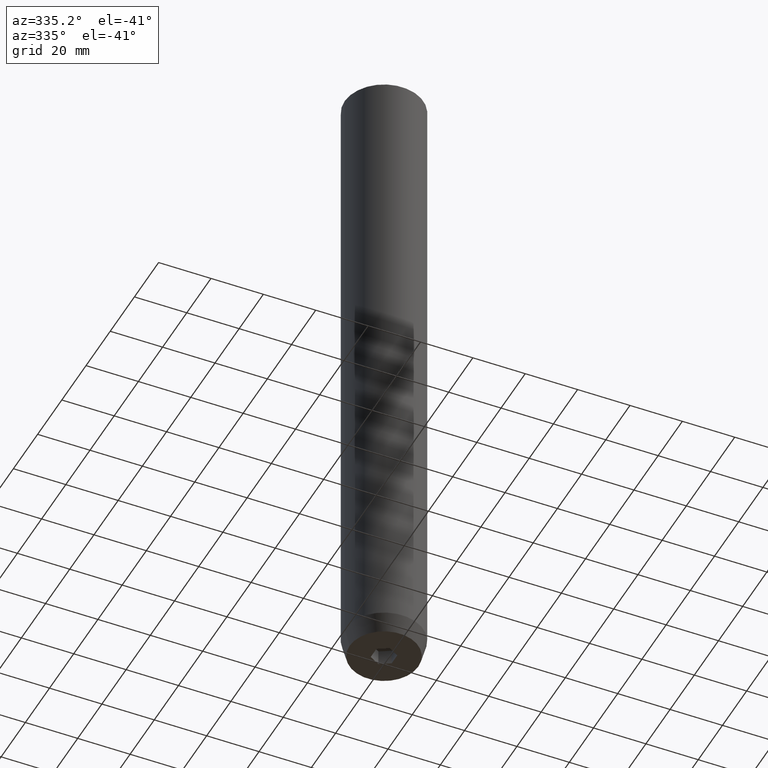
[diagram: clean part render]
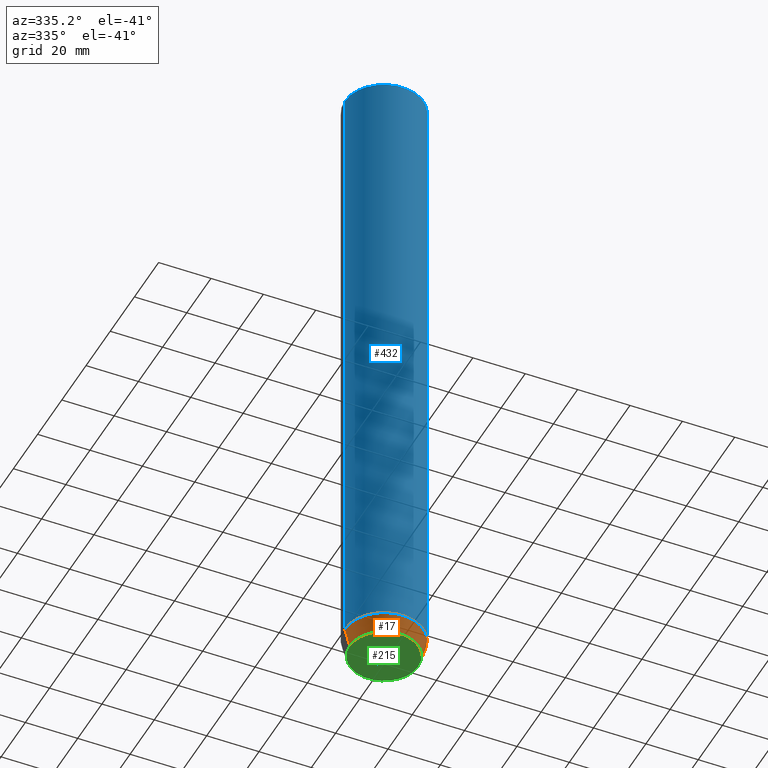
[diagram: same view with three faces highlighted in distinct colors, each labeled with its STEP entity id]
A machine part, auxiliary view with three faces highlighted in distinct colors.
Their STEP definitions:

[orange] entity #17 — the highlighted conical surface has half-angle 15 deg.
#2 = ORIENTED_EDGE ( 'NONE', *, *, #561, .T. ) ;
#17 = ADVANCED_FACE ( 'NONE', ( #604 ), #427, .T. ) ;
#20 = DIRECTION ( 'NONE',  ( -0.000000000000000000, -0.000000000000000000, 1.000000000000000000 ) ) ;
#37 = CARTESIAN_POINT ( 'NONE',  ( 0.000000000000000000, 0.000000000000000000, -243.0000000000000000 ) ) ;
#59 = CIRCLE ( 'NONE', #587, 15.00000000000000000 ) ;
#63 = CARTESIAN_POINT ( 'NONE',  ( 15.00000000000000000, 0.000000000000000000, -243.0000000000000000 ) ) ;
#96 = VECTOR ( 'NONE', #399, 1000.000000000000000 ) ;
#127 = DIRECTION ( 'NONE',  ( 1.000000000000000000, 0.000000000000000000, 0.000000000000000000 ) ) ;
#144 = DIRECTION ( 'NONE',  ( -0.2588190451025222383, 3.169619151431782814E-17, 0.9659258262890678681 ) ) ;
#186 = CARTESIAN_POINT ( 'NONE',  ( 0.000000000000000000, 0.000000000000000000, -250.0000000000000000 ) ) ;
#196 = ORIENTED_EDGE ( 'NONE', *, *, #507, .F. ) ;
#197 = CARTESIAN_POINT ( 'NONE',  ( 13.12435565298212659, 0.000000000000000000, -250.0000000000000000 ) ) ;
#208 = EDGE_LOOP ( 'NONE', ( #196, #2, #615, #297 ) ) ;
#213 = CARTESIAN_POINT ( 'NONE',  ( 15.00000000000000000, 0.000000000000000000, -243.0000000000000000 ) ) ;
#226 = VERTEX_POINT ( 'NONE', #63 ) ;
#228 = AXIS2_PLACEMENT_3D ( 'NONE', #186, #284, #533 ) ;
#280 = EDGE_CURVE ( 'NONE', #584, #226, #303, .T. ) ;
#284 = DIRECTION ( 'NONE',  ( -0.000000000000000000, -0.000000000000000000, 1.000000000000000000 ) ) ;
#289 = DIRECTION ( 'NONE',  ( -0.000000000000000000, -0.000000000000000000, 1.000000000000000000 ) ) ;
#297 = ORIENTED_EDGE ( 'NONE', *, *, #624, .F. ) ;
#303 = LINE ( 'NONE', #213, #96 ) ;
#347 = DIRECTION ( 'NONE',  ( 1.000000000000000000, 0.000000000000000000, 0.000000000000000000 ) ) ;
#381 = VERTEX_POINT ( 'NONE', #623 ) ;
#399 = DIRECTION ( 'NONE',  ( 0.2588190451025222383, 0.000000000000000000, 0.9659258262890678681 ) ) ;
#408 = CARTESIAN_POINT ( 'NONE',  ( 0.000000000000000000, 0.000000000000000000, -243.0000000000000000 ) ) ;
#427 = CONICAL_SURFACE ( 'NONE', #518, 15.00000000000000000, 0.2617993877991509621 ) ;
#431 = LINE ( 'NONE', #488, #456 ) ;
#456 = VECTOR ( 'NONE', #144, 1000.000000000000000 ) ;
#488 = CARTESIAN_POINT ( 'NONE',  ( -15.00000000000000000, 1.836970198721029589E-15, -243.0000000000000000 ) ) ;
#507 = EDGE_CURVE ( 'NONE', #577, #381, #431, .T. ) ;
#518 = AXIS2_PLACEMENT_3D ( 'NONE', #408, #20, #347 ) ;
#533 = DIRECTION ( 'NONE',  ( 1.000000000000000000, 0.000000000000000000, 0.000000000000000000 ) ) ;
#537 = CARTESIAN_POINT ( 'NONE',  ( -13.12435565298212659, 1.722120106425316494E-15, -250.0000000000000000 ) ) ;
#548 = CIRCLE ( 'NONE', #228, 13.12435565298212659 ) ;
#561 = EDGE_CURVE ( 'NONE', #577, #584, #548, .T. ) ;
#577 = VERTEX_POINT ( 'NONE', #537 ) ;
#584 = VERTEX_POINT ( 'NONE', #197 ) ;
#587 = AXIS2_PLACEMENT_3D ( 'NONE', #37, #289, #127 ) ;
#604 = FACE_OUTER_BOUND ( 'NONE', #208, .T. ) ;
#615 = ORIENTED_EDGE ( 'NONE', *, *, #280, .T. ) ;
#623 = CARTESIAN_POINT ( 'NONE',  ( -15.00000000000000000, 1.836970198721029589E-15, -243.0000000000000000 ) ) ;
#624 = EDGE_CURVE ( 'NONE', #381, #226, #59, .T. ) ;

[blue] entity #432 — the highlighted cylindrical surface (partial cylindrical patch) has radius 15 mm, axis along (-0, -0, 1).
#15 = EDGE_LOOP ( 'NONE', ( #122, #244, #242, #264 ) ) ;
#37 = CARTESIAN_POINT ( 'NONE',  ( 0.000000000000000000, 0.000000000000000000, -243.0000000000000000 ) ) ;
#59 = CIRCLE ( 'NONE', #587, 15.00000000000000000 ) ;
#63 = CARTESIAN_POINT ( 'NONE',  ( 15.00000000000000000, 0.000000000000000000, -243.0000000000000000 ) ) ;
#74 = FACE_OUTER_BOUND ( 'NONE', #15, .T. ) ;
#87 = VERTEX_POINT ( 'NONE', #188 ) ;
#118 = DIRECTION ( 'NONE',  ( 1.000000000000000000, 0.000000000000000000, 0.000000000000000000 ) ) ;
#121 = CARTESIAN_POINT ( 'NONE',  ( 15.00000000000000000, 0.000000000000000000, -0.5000000000000662803 ) ) ;
#122 = ORIENTED_EDGE ( 'NONE', *, *, #442, .F. ) ;
#127 = DIRECTION ( 'NONE',  ( 1.000000000000000000, 0.000000000000000000, 0.000000000000000000 ) ) ;
#133 = LINE ( 'NONE', #200, #553 ) ;
#169 = DIRECTION ( 'NONE',  ( -0.000000000000000000, -0.000000000000000000, 1.000000000000000000 ) ) ;
#188 = CARTESIAN_POINT ( 'NONE',  ( -15.00000000000000000, 1.836970198721029589E-15, -0.5000000000000662803 ) ) ;
#200 = CARTESIAN_POINT ( 'NONE',  ( 15.00000000000000000, 0.000000000000000000, 0.000000000000000000 ) ) ;
#219 = DIRECTION ( 'NONE',  ( 0.000000000000000000, 0.000000000000000000, -1.000000000000000000 ) ) ;
#226 = VERTEX_POINT ( 'NONE', #63 ) ;
#242 = ORIENTED_EDGE ( 'NONE', *, *, #639, .T. ) ;
#244 = ORIENTED_EDGE ( 'NONE', *, *, #624, .T. ) ;
#264 = ORIENTED_EDGE ( 'NONE', *, *, #368, .T. ) ;
#266 = LINE ( 'NONE', #468, #572 ) ;
#270 = CARTESIAN_POINT ( 'NONE',  ( 0.000000000000000000, 0.000000000000000000, 0.000000000000000000 ) ) ;
#289 = DIRECTION ( 'NONE',  ( -0.000000000000000000, -0.000000000000000000, 1.000000000000000000 ) ) ;
#298 = DIRECTION ( 'NONE',  ( -0.000000000000000000, -0.000000000000000000, 1.000000000000000000 ) ) ;
#321 = DIRECTION ( 'NONE',  ( 1.000000000000000000, 0.000000000000000000, 0.000000000000000000 ) ) ;
#368 = EDGE_CURVE ( 'NONE', #417, #87, #373, .T. ) ;
#373 = CIRCLE ( 'NONE', #490, 15.00000000000000000 ) ;
#381 = VERTEX_POINT ( 'NONE', #623 ) ;
#414 = DIRECTION ( 'NONE',  ( -0.000000000000000000, -0.000000000000000000, 1.000000000000000000 ) ) ;
#417 = VERTEX_POINT ( 'NONE', #121 ) ;
#432 = ADVANCED_FACE ( 'NONE', ( #74 ), #472, .T. ) ;
#442 = EDGE_CURVE ( 'NONE', #381, #87, #266, .T. ) ;
#468 = CARTESIAN_POINT ( 'NONE',  ( -15.00000000000000000, 1.836970198721029589E-15, 0.000000000000000000 ) ) ;
#472 = CYLINDRICAL_SURFACE ( 'NONE', #621, 15.00000000000000000 ) ;
#490 = AXIS2_PLACEMENT_3D ( 'NONE', #570, #219, #321 ) ;
#553 = VECTOR ( 'NONE', #298, 1000.000000000000000 ) ;
#570 = CARTESIAN_POINT ( 'NONE',  ( 0.000000000000000000, 0.000000000000000000, -0.5000000000000662803 ) ) ;
#572 = VECTOR ( 'NONE', #414, 1000.000000000000000 ) ;
#587 = AXIS2_PLACEMENT_3D ( 'NONE', #37, #289, #127 ) ;
#621 = AXIS2_PLACEMENT_3D ( 'NONE', #270, #169, #118 ) ;
#623 = CARTESIAN_POINT ( 'NONE',  ( -15.00000000000000000, 1.836970198721029589E-15, -243.0000000000000000 ) ) ;
#624 = EDGE_CURVE ( 'NONE', #381, #226, #59, .T. ) ;
#639 = EDGE_CURVE ( 'NONE', #226, #417, #133, .T. ) ;

[green] entity #215 — the highlighted planar face has unit normal (0, 0, -1).
#9 = PLANE ( 'NONE',  #10 ) ;
#10 = AXIS2_PLACEMENT_3D ( 'NONE', #255, #261, #447 ) ;
#36 = VERTEX_POINT ( 'NONE', #486 ) ;
#46 = DIRECTION ( 'NONE',  ( 0.000000000000000000, -1.000000000000000000, 0.000000000000000000 ) ) ;
#55 = CARTESIAN_POINT ( 'NONE',  ( -2.000000000000000000, 3.464101615137755275, -250.0000000000000000 ) ) ;
#70 = DIRECTION ( 'NONE',  ( -0.8660254037844385966, -0.4999999999999998890, 0.000000000000000000 ) ) ;
#91 = LINE ( 'NONE', #291, #315 ) ;
#101 = EDGE_LOOP ( 'NONE', ( #273, #430 ) ) ;
#112 = FACE_BOUND ( 'NONE', #201, .T. ) ;
#114 = DIRECTION ( 'NONE',  ( 1.000000000000000000, 0.000000000000000000, 0.000000000000000000 ) ) ;
#125 = AXIS2_PLACEMENT_3D ( 'NONE', #318, #365, #114 ) ;
#143 = EDGE_CURVE ( 'NONE', #519, #268, #573, .T. ) ;
#174 = CARTESIAN_POINT ( 'NONE',  ( -4.000000000000000888, 1.502314598737159623E-15, -250.0000000000000000 ) ) ;
#176 = DIRECTION ( 'NONE',  ( -0.8660254037844387076, 0.4999999999999997224, 0.000000000000000000 ) ) ;
#186 = CARTESIAN_POINT ( 'NONE',  ( 0.000000000000000000, 0.000000000000000000, -250.0000000000000000 ) ) ;
#197 = CARTESIAN_POINT ( 'NONE',  ( 13.12435565298212659, 0.000000000000000000, -250.0000000000000000 ) ) ;
#201 = EDGE_LOOP ( 'NONE', ( #419, #635, #409, #461, #334, #235 ) ) ;
#205 = VECTOR ( 'NONE', #70, 1000.000000000000227 ) ;
#215 = ADVANCED_FACE ( 'NONE', ( #112, #310 ), #9, .T. ) ;
#228 = AXIS2_PLACEMENT_3D ( 'NONE', #186, #284, #533 ) ;
#229 = LINE ( 'NONE', #467, #336 ) ;
#231 = CARTESIAN_POINT ( 'NONE',  ( 4.000000000000000000, -2.309401076758503368, -250.0000000000000000 ) ) ;
#235 = ORIENTED_EDGE ( 'NONE', *, *, #454, .F. ) ;
#246 = DIRECTION ( 'NONE',  ( 0.8660254037844387076, 0.4999999999999999445, 0.000000000000000000 ) ) ;
#253 = CARTESIAN_POINT ( 'NONE',  ( -4.000000000000001776, -2.309401076758503368, -250.0000000000000000 ) ) ;
#255 = CARTESIAN_POINT ( 'NONE',  ( 0.000000000000000000, 13.12435565298212659, -250.0000000000000000 ) ) ;
#261 = DIRECTION ( 'NONE',  ( 0.000000000000000000, 0.000000000000000000, -1.000000000000000000 ) ) ;
#268 = VERTEX_POINT ( 'NONE', #253 ) ;
#273 = ORIENTED_EDGE ( 'NONE', *, *, #412, .F. ) ;
#275 = CARTESIAN_POINT ( 'NONE',  ( 1.999999999999999556, -3.464101615137754386, -250.0000000000000000 ) ) ;
#284 = DIRECTION ( 'NONE',  ( -0.000000000000000000, -0.000000000000000000, 1.000000000000000000 ) ) ;
#285 = CARTESIAN_POINT ( 'NONE',  ( 4.000000000000000000, 2.309401076758504257, -250.0000000000000000 ) ) ;
#291 = CARTESIAN_POINT ( 'NONE',  ( 4.000000000000000000, 0.000000000000000000, -250.0000000000000000 ) ) ;
#310 = FACE_OUTER_BOUND ( 'NONE', #101, .T. ) ;
#315 = VECTOR ( 'NONE', #46, 1000.000000000000000 ) ;
#318 = CARTESIAN_POINT ( 'NONE',  ( 0.000000000000000000, 0.000000000000000000, -250.0000000000000000 ) ) ;
#323 = CARTESIAN_POINT ( 'NONE',  ( -1.999999999999999112, -3.464101615137755275, -250.0000000000000000 ) ) ;
#325 = VERTEX_POINT ( 'NONE', #616 ) ;
#329 = EDGE_CURVE ( 'NONE', #325, #36, #496, .T. ) ;
#334 = ORIENTED_EDGE ( 'NONE', *, *, #576, .F. ) ;
#336 = VECTOR ( 'NONE', #620, 999.9999999999998863 ) ;
#364 = LINE ( 'NONE', #275, #205 ) ;
#365 = DIRECTION ( 'NONE',  ( -0.000000000000000000, -0.000000000000000000, 1.000000000000000000 ) ) ;
#387 = VECTOR ( 'NONE', #579, 1000.000000000000000 ) ;
#407 = CIRCLE ( 'NONE', #125, 13.12435565298212659 ) ;
#409 = ORIENTED_EDGE ( 'NONE', *, *, #143, .F. ) ;
#412 = EDGE_CURVE ( 'NONE', #584, #577, #407, .T. ) ;
#419 = ORIENTED_EDGE ( 'NONE', *, *, #329, .F. ) ;
#420 = EDGE_CURVE ( 'NONE', #590, #519, #364, .T. ) ;
#421 = LINE ( 'NONE', #174, #387 ) ;
#430 = ORIENTED_EDGE ( 'NONE', *, *, #561, .F. ) ;
#447 = DIRECTION ( 'NONE',  ( -1.000000000000000000, 0.000000000000000000, -0.000000000000000000 ) ) ;
#454 = EDGE_CURVE ( 'NONE', #36, #535, #229, .T. ) ;
#461 = ORIENTED_EDGE ( 'NONE', *, *, #420, .F. ) ;
#467 = CARTESIAN_POINT ( 'NONE',  ( 2.000000000000000000, 3.464101615137755275, -250.0000000000000000 ) ) ;
#469 = EDGE_CURVE ( 'NONE', #268, #325, #421, .T. ) ;
#486 = CARTESIAN_POINT ( 'NONE',  ( 8.673617379884035472E-16, 4.618802153517006737, -250.0000000000000000 ) ) ;
#491 = CARTESIAN_POINT ( 'NONE',  ( 8.673617379884035472E-16, -4.618802153517004960, -250.0000000000000000 ) ) ;
#496 = LINE ( 'NONE', #55, #557 ) ;
#519 = VERTEX_POINT ( 'NONE', #491 ) ;
#533 = DIRECTION ( 'NONE',  ( 1.000000000000000000, 0.000000000000000000, 0.000000000000000000 ) ) ;
#535 = VERTEX_POINT ( 'NONE', #285 ) ;
#537 = CARTESIAN_POINT ( 'NONE',  ( -13.12435565298212659, 1.722120106425316494E-15, -250.0000000000000000 ) ) ;
#548 = CIRCLE ( 'NONE', #228, 13.12435565298212659 ) ;
#557 = VECTOR ( 'NONE', #246, 999.9999999999998863 ) ;
#561 = EDGE_CURVE ( 'NONE', #577, #584, #548, .T. ) ;
#573 = LINE ( 'NONE', #323, #589 ) ;
#576 = EDGE_CURVE ( 'NONE', #535, #590, #91, .T. ) ;
#577 = VERTEX_POINT ( 'NONE', #537 ) ;
#579 = DIRECTION ( 'NONE',  ( 3.755786496842898071E-16, 1.000000000000000000, 0.000000000000000000 ) ) ;
#584 = VERTEX_POINT ( 'NONE', #197 ) ;
#589 = VECTOR ( 'NONE', #176, 1000.000000000000114 ) ;
#590 = VERTEX_POINT ( 'NONE', #231 ) ;
#616 = CARTESIAN_POINT ( 'NONE',  ( -4.000000000000000000, 2.309401076758504257, -250.0000000000000000 ) ) ;
#620 = DIRECTION ( 'NONE',  ( 0.8660254037844387076, -0.4999999999999999445, 0.000000000000000000 ) ) ;
#635 = ORIENTED_EDGE ( 'NONE', *, *, #469, .F. ) ;